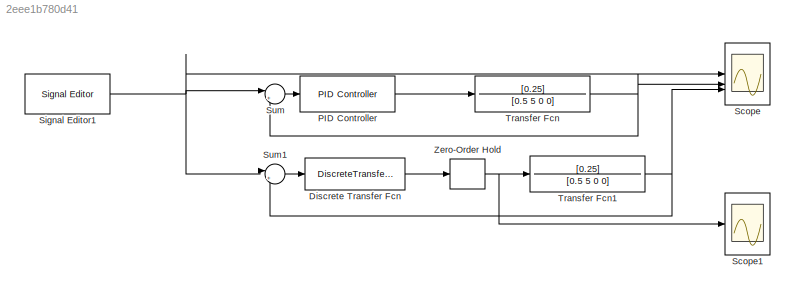
MODEL slx_2eee1b780d41
KIND model
CONFIG AbsTol = auto
CONFIG EnableMultiTasking = off
CONFIG FixedStep = auto
CONFIG MaxStep = auto
CONFIG MinStep = auto
CONFIG RelTol = 1e-3
CONFIG SampleTimeConstraint = Unconstrained
CONFIG SolverName = VariableStepAuto
CONFIG StartTime = 0.0
CONFIG StopTime = 10
BLOCK [DiscreteTransferFcn] Discrete Transfer Fcn
  Denominator = [1 1]
  InputPortMap = u0
  Numerator = [2002 -1998]
BLOCK [Reference] PID Controller  REF=slpidlib/PID Controller
  LibrarySourceBlock = simulink/Continuous/PID Controller
  SourceBlock = slpidlib/PID Controller
  SourceType = PID 1dof
BLOCK [Scope] Scope
  Floating = off
  NumInputPorts = 3
  ScopeSpecificationString = Simulink.scopes.TimeScopeBlockCfg('CurrentConfiguration', extmgr.ConfigurationSet(extmgr.Configuration('Core','General UI',true),extmgr.Configuration('Core','Source UI',true),extmgr.Configuration('Sources','WiredSimulink',true),extmgr.Configuration('Visuals','Time Domain',true,'SerializedDisplays',{struct('MinYLimReal','-54.18755','MaxYLimReal','60.34305','YLabelReal','','MinYLimMag','0.00000','Ma...<+1471ch>
BLOCK [Scope] Scope1
  Floating = off
  NumInputPorts = 1
  ScopeSpecificationString = Simulink.scopes.TimeScopeBlockCfg('CurrentConfiguration', extmgr.ConfigurationSet(extmgr.Configuration('Core','General UI',true),extmgr.Configuration('Core','Source UI',true),extmgr.Configuration('Sources','WiredSimulink',true,'DataLoggingVariableName','ScopeData1'),extmgr.Configuration('Visuals','Time Domain',true,'SerializedDisplays',{struct('MinYLimReal','-35007.21594','MaxYLimReal','34929.2618...<+1475ch>
BLOCK [Reference] Signal Editor1  REF=SignalEditorBlockLib/Signal Editor
  LibrarySourceBlock = simulink/Sources/Signal Editor
  SourceBlock = SignalEditorBlockLib/Signal Editor
  SourceType = SignalEditor
  UserDataPersistent = on
BLOCK [Sum] Sum
  Inputs = |+-
BLOCK [Sum] Sum1
  Inputs = |+-
BLOCK [TransferFcn] Transfer Fcn
  Denominator = [0.5 5 0 0]
  Numerator = [0.25]
BLOCK [TransferFcn] Transfer Fcn1
  Denominator = [0.5 5 0 0]
  Numerator = [0.25]
BLOCK [ZeroOrderHold] Zero-Order Hold
  SampleTime = 0.02
LINE Discrete Transfer Fcn:1 -> Zero-Order Hold:1
LINE PID Controller:1 -> Transfer Fcn:1
NET Signal Editor1:1 -> Scope:1, Sum1:1, Sum:1
LINE Sum1:1 -> Discrete Transfer Fcn:1
LINE Sum:1 -> PID Controller:1
NET Transfer Fcn1:1 -> Scope:3, Sum1:2
NET Transfer Fcn:1 -> Scope:2, Sum:2
NET Zero-Order Hold:1 -> Scope1:1, Transfer Fcn1:1
note: NET lines group one-source signal fan-out (src -> all destinations, sorted); 1:1 wires keep LINE
